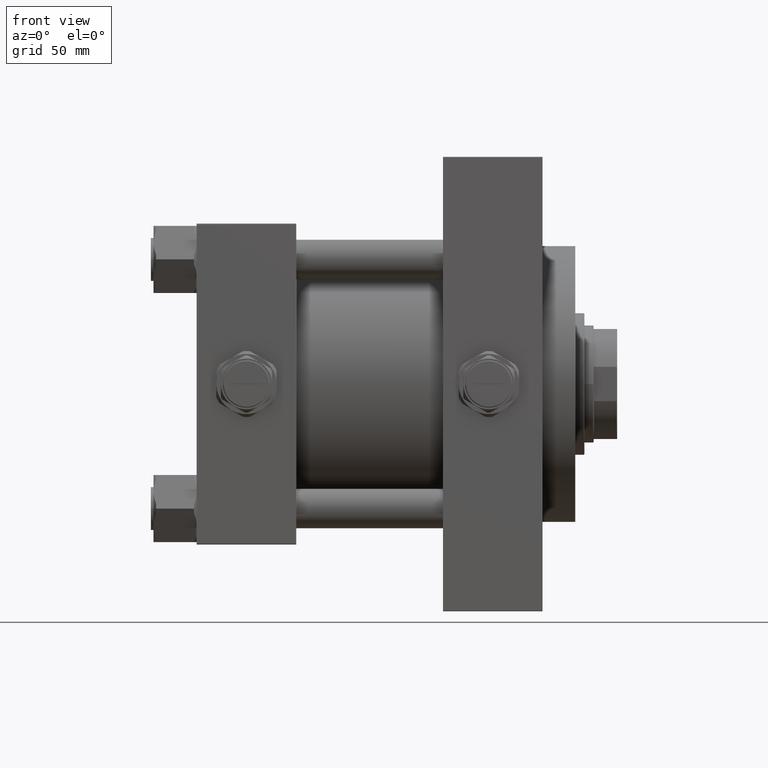
[diagram: clean part render]
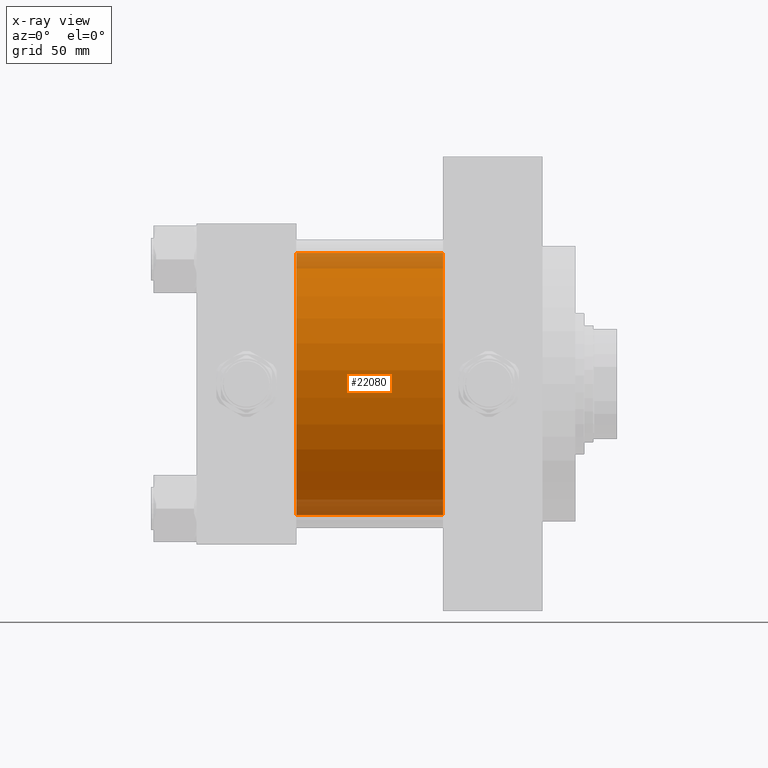
[diagram: x-ray — body ghosted, one internal face saturated and labeled with its STEP entity id]
A machine part, front view, then the same camera in x-ray: the body is ghosted and one INTERNAL B-rep face — a face not visible from any outside direction — is saturated and labeled: STEP entity #22080.
In plain terms, the highlighted cylindrical surface (partial cylindrical patch) has radius 100 mm, axis along (-1, -0, -0).
Its self-contained STEP definition (entity closure, byte-faithful):
#2708 = ORIENTED_EDGE ( 'NONE', *, *, #39212, .F. ) ;
#4330 = CARTESIAN_POINT ( 'NONE',  ( 188.0000000000000000, -2.602085213965210642E-15, 100.0000000000000000 ) ) ;
#4974 = CIRCLE ( 'NONE', #40304, 100.0000000000000000 ) ;
#6031 = EDGE_CURVE ( 'NONE', #48651, #45887, #9451, .T. ) ;
#6226 = AXIS2_PLACEMENT_3D ( 'NONE', #29931, #48780, #18365 ) ;
#6704 = LINE ( 'NONE', #37605, #23720 ) ;
#9451 = CIRCLE ( 'NONE', #6226, 100.0000000000000000 ) ;
#10175 = CARTESIAN_POINT ( 'NONE',  ( 76.00000000000000000, -2.602085213965210642E-15, 0.000000000000000000 ) ) ;
#12109 = DIRECTION ( 'NONE',  ( -1.000000000000000000, -0.000000000000000000, -0.000000000000000000 ) ) ;
#13707 = DIRECTION ( 'NONE',  ( 1.000000000000000000, 0.000000000000000000, 0.000000000000000000 ) ) ;
#18365 = DIRECTION ( 'NONE',  ( 0.000000000000000000, 0.000000000000000000, -1.000000000000000000 ) ) ;
#18791 = DIRECTION ( 'NONE',  ( -1.000000000000000000, -0.000000000000000000, -0.000000000000000000 ) ) ;
#19405 = FACE_OUTER_BOUND ( 'NONE', #25457, .T. ) ;
#22080 = ADVANCED_FACE ( 'NONE', ( #19405 ), #27191, .F. ) ;
#22526 = DIRECTION ( 'NONE',  ( -1.000000000000000000, -0.000000000000000000, -0.000000000000000000 ) ) ;
#23720 = VECTOR ( 'NONE', #22526, 1000.000000000000000 ) ;
#25457 = EDGE_LOOP ( 'NONE', ( #46762, #47938, #38636, #2708 ) ) ;
#27064 = LINE ( 'NONE', #39115, #37216 ) ;
#27191 = CYLINDRICAL_SURFACE ( 'NONE', #37141, 100.0000000000000000 ) ;
#27814 = EDGE_CURVE ( 'NONE', #45599, #38122, #4974, .T. ) ;
#29931 = CARTESIAN_POINT ( 'NONE',  ( 188.0000000000000000, -2.602085213965210642E-15, 0.000000000000000000 ) ) ;
#30721 = CARTESIAN_POINT ( 'NONE',  ( 188.0000000000000000, -2.602085213965210642E-15, 0.000000000000000000 ) ) ;
#30968 = DIRECTION ( 'NONE',  ( 0.000000000000000000, 0.000000000000000000, 1.000000000000000000 ) ) ;
#32236 = EDGE_CURVE ( 'NONE', #45887, #38122, #27064, .T. ) ;
#35825 = CARTESIAN_POINT ( 'NONE',  ( 76.00000000000000000, -2.602085213965210642E-15, 100.0000000000000000 ) ) ;
#37141 = AXIS2_PLACEMENT_3D ( 'NONE', #30721, #12109, #30968 ) ;
#37216 = VECTOR ( 'NONE', #18791, 1000.000000000000000 ) ;
#37605 = CARTESIAN_POINT ( 'NONE',  ( 188.0000000000000000, -2.602085213965210642E-15, 100.0000000000000000 ) ) ;
#38122 = VERTEX_POINT ( 'NONE', #38328 ) ;
#38328 = CARTESIAN_POINT ( 'NONE',  ( 76.00000000000000000, 9.644382777508321529E-15, -100.0000000000000000 ) ) ;
#38636 = ORIENTED_EDGE ( 'NONE', *, *, #27814, .F. ) ;
#39115 = CARTESIAN_POINT ( 'NONE',  ( 188.0000000000000000, 9.644382777508321529E-15, -100.0000000000000000 ) ) ;
#39212 = EDGE_CURVE ( 'NONE', #48651, #45599, #6704, .T. ) ;
#40304 = AXIS2_PLACEMENT_3D ( 'NONE', #10175, #13707, #44379 ) ;
#42325 = CARTESIAN_POINT ( 'NONE',  ( 188.0000000000000000, 9.644382777508321529E-15, -100.0000000000000000 ) ) ;
#44379 = DIRECTION ( 'NONE',  ( 0.000000000000000000, 0.000000000000000000, -1.000000000000000000 ) ) ;
#45599 = VERTEX_POINT ( 'NONE', #35825 ) ;
#45887 = VERTEX_POINT ( 'NONE', #42325 ) ;
#46762 = ORIENTED_EDGE ( 'NONE', *, *, #6031, .T. ) ;
#47938 = ORIENTED_EDGE ( 'NONE', *, *, #32236, .T. ) ;
#48651 = VERTEX_POINT ( 'NONE', #4330 ) ;
#48780 = DIRECTION ( 'NONE',  ( 1.000000000000000000, 0.000000000000000000, 0.000000000000000000 ) ) ;